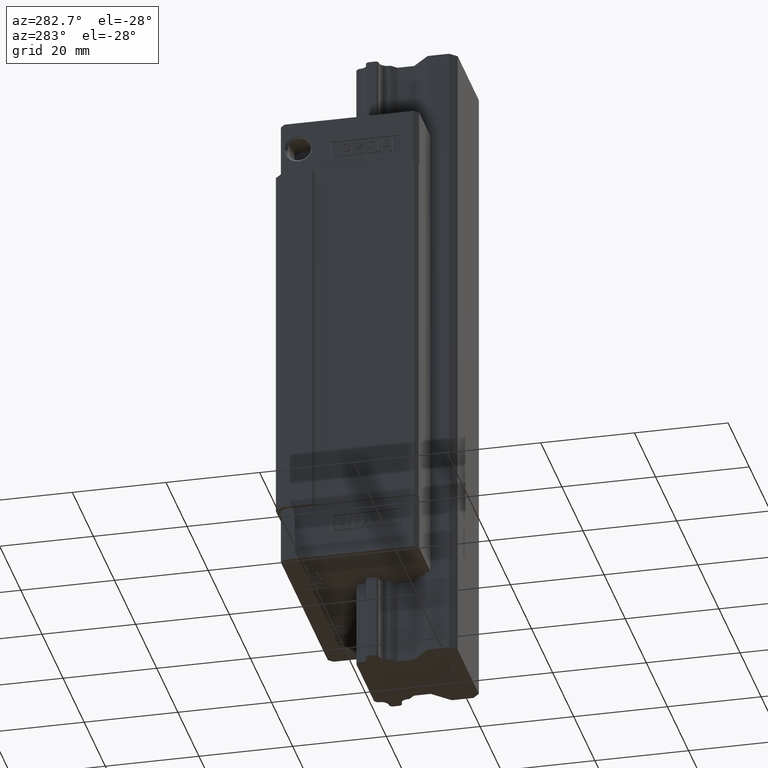
[diagram: clean part render]
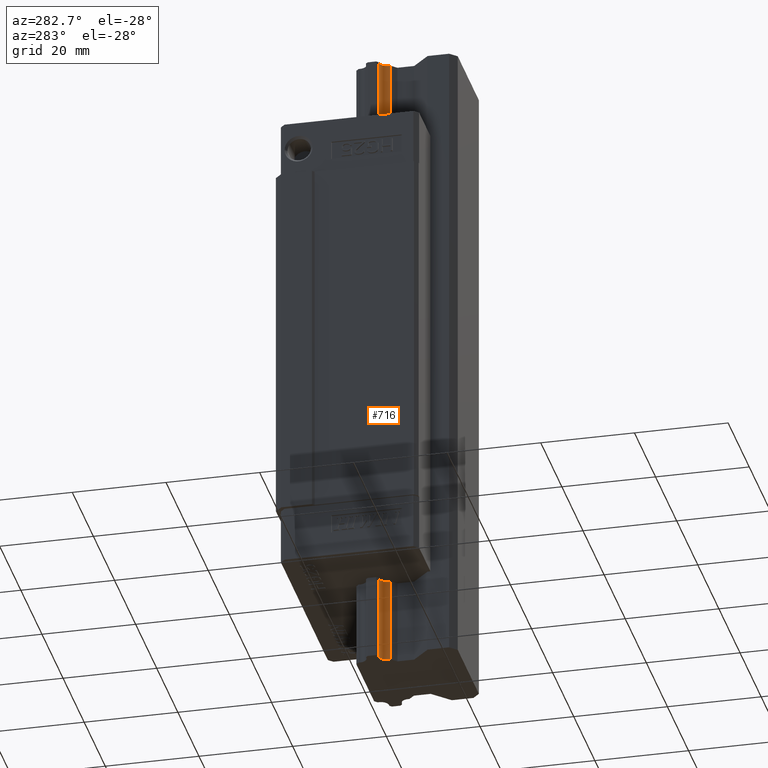
[diagram: same view with one face highlighted and labeled with its STEP entity id]
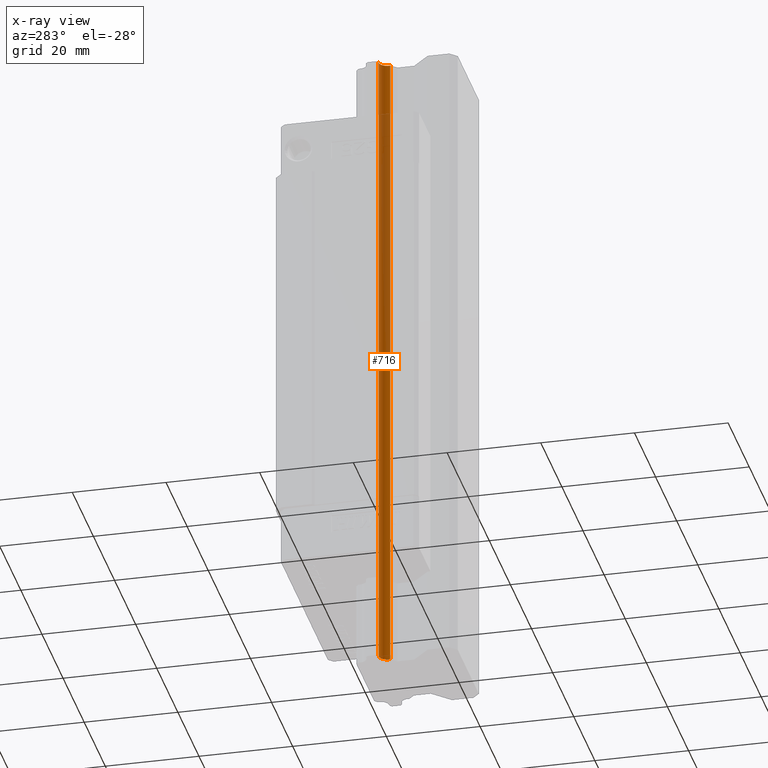
[diagram: x-ray of the same camera — body ghosted, the highlighted face saturated]
A machine part, auxiliary view. The second image highlights one B-rep face of the part: STEP entity #716.
The next image is the same camera in x-ray: the body ghosted, the highlighted face saturated — about 26% of this face is hidden behind the body in this view.
In plain terms, the highlighted cylindrical surface (edge-blend (fillet) strip) has radius 1.75 mm, axis along (0, 0, -1).
Its self-contained STEP definition (entity closure, byte-faithful):
#55=CARTESIAN_POINT('',(-1.076703113964E1,-7.062684906927E0,-1.09E2));
#56=DIRECTION('',(0.E0,0.E0,-1.E0));
#57=DIRECTION('',(-1.783388251255E-1,9.839691374494E-1,0.E0));
#58=AXIS2_PLACEMENT_3D('',#55,#56,#57);
#60=CARTESIAN_POINT('',(-1.076703113964E1,-7.062684906927E0,-1.09E2));
#61=DIRECTION('',(0.E0,0.E0,-1.E0));
#62=DIRECTION('',(9.999999927986E-1,1.200112725773E-4,0.E0));
#63=AXIS2_PLACEMENT_3D('',#60,#61,#62);
#173=CARTESIAN_POINT('',(-1.076703113964E1,-7.062684906927E0,3.1E1));
#174=DIRECTION('',(0.E0,0.E0,1.E0));
#175=DIRECTION('',(9.839691984791E-1,-1.783384883987E-1,0.E0));
#176=AXIS2_PLACEMENT_3D('',#173,#174,#175);
#178=CARTESIAN_POINT('',(-1.076703113964E1,-7.062684906927E0,3.1E1));
#179=DIRECTION('',(0.E0,0.E0,1.E0));
#180=DIRECTION('',(9.999999959682E-1,-8.979736531955E-5,0.E0));
#181=AXIS2_PLACEMENT_3D('',#178,#179,#180);
#257=DIRECTION('',(0.E0,0.E0,-1.E0));
#258=VECTOR('',#257,1.4E2);
#259=CARTESIAN_POINT('',(-9.045085042302E0,-7.374777261625E0,3.1E1));
#260=LINE('',#259,#258);
#261=DIRECTION('',(0.E0,0.E0,1.E0));
#262=VECTOR('',#261,1.4E2);
#263=CARTESIAN_POINT('',(-1.107912408361E1,-5.340738916390E0,-1.09E2));
#264=LINE('',#263,#262);
#367=CARTESIAN_POINT('',(-1.107912408361E1,-5.340738916390E0,-1.09E2));
#368=VERTEX_POINT('',#367);
#369=CARTESIAN_POINT('',(-9.017031152242E0,-7.062474887200E0,-1.09E2));
#370=VERTEX_POINT('',#369);
#371=CARTESIAN_POINT('',(-9.045085042302E0,-7.374777261625E0,-1.09E2));
#372=VERTEX_POINT('',#371);
#429=CARTESIAN_POINT('',(-9.045085042302E0,-7.374777261625E0,3.1E1));
#430=VERTEX_POINT('',#429);
#431=CARTESIAN_POINT('',(-9.017031146696E0,-7.062842052316E0,3.1E1));
#432=VERTEX_POINT('',#431);
#433=CARTESIAN_POINT('',(-1.107912408361E1,-5.340738916391E0,3.1E1));
#434=VERTEX_POINT('',#433);
#702=CARTESIAN_POINT('',(-1.076703113964E1,-7.062684906927E0,-1.09E2));
#703=DIRECTION('',(0.E0,0.E0,-1.E0));
#704=DIRECTION('',(-1.E0,0.E0,0.E0));
#705=AXIS2_PLACEMENT_3D('',#702,#703,#704);
#706=CYLINDRICAL_SURFACE('',#705,1.75E0);
#707=ORIENTED_EDGE('',*,*,#572,.F.);
#708=ORIENTED_EDGE('',*,*,#570,.F.);
#710=ORIENTED_EDGE('',*,*,#709,.T.);
#711=ORIENTED_EDGE('',*,*,#486,.F.);
#712=ORIENTED_EDGE('',*,*,#484,.F.);
#713=ORIENTED_EDGE('',*,*,#694,.T.);
#714=EDGE_LOOP('',(#707,#708,#710,#711,#712,#713));
#715=FACE_OUTER_BOUND('',#714,.F.);
#716=ADVANCED_FACE('',(#715),#706,.F.);
#59=CIRCLE('',#58,1.75E0);
#64=CIRCLE('',#63,1.75E0);
#177=CIRCLE('',#176,1.75E0);
#182=CIRCLE('',#181,1.75E0);
#484=EDGE_CURVE('',#368,#370,#59,.T.);
#486=EDGE_CURVE('',#370,#372,#64,.T.);
#570=EDGE_CURVE('',#430,#432,#177,.T.);
#572=EDGE_CURVE('',#432,#434,#182,.T.);
#694=EDGE_CURVE('',#368,#434,#264,.T.);
#709=EDGE_CURVE('',#430,#372,#260,.T.);